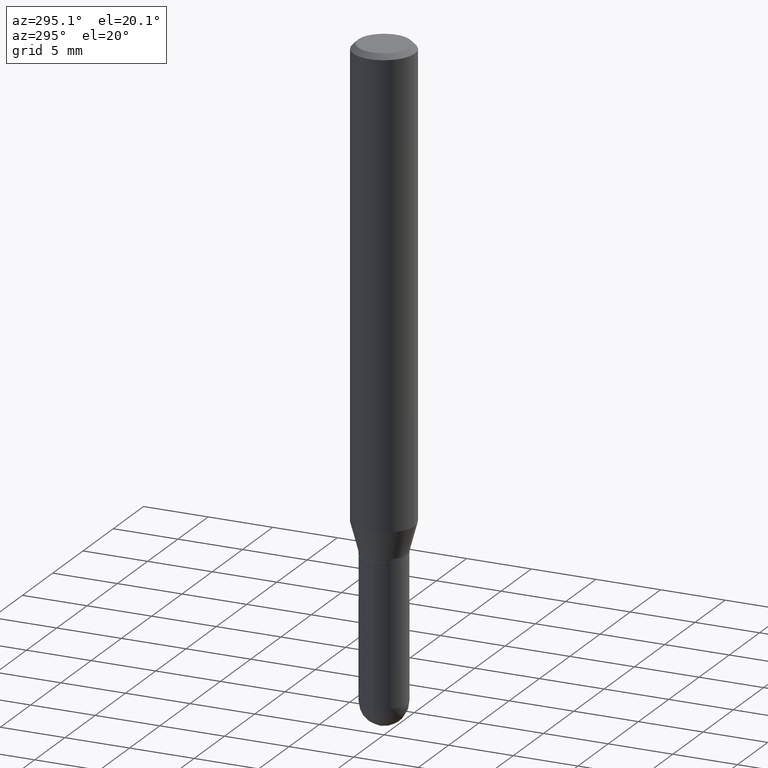
[diagram: clean part render]
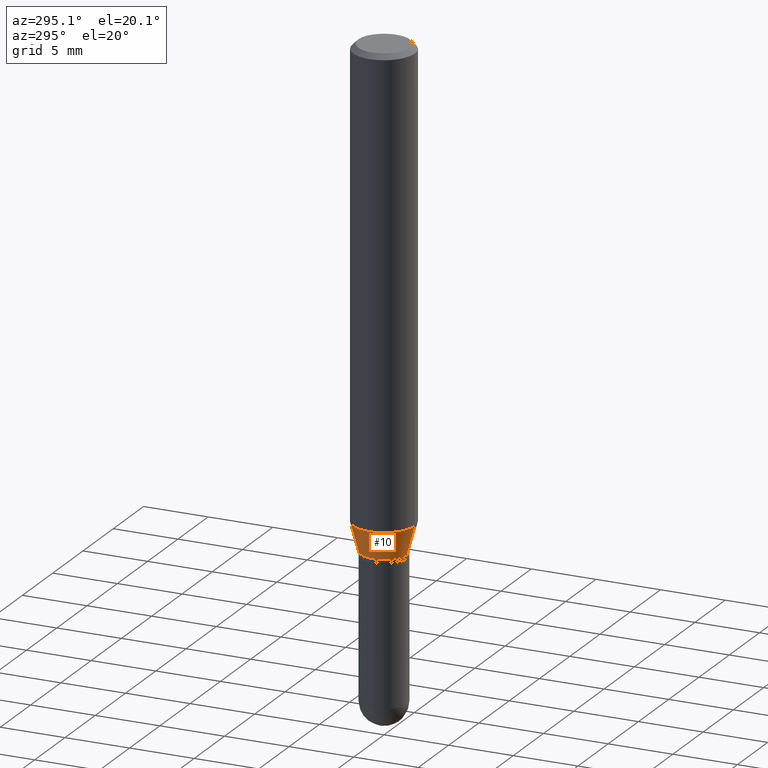
[diagram: same view with one face highlighted and labeled with its STEP entity id]
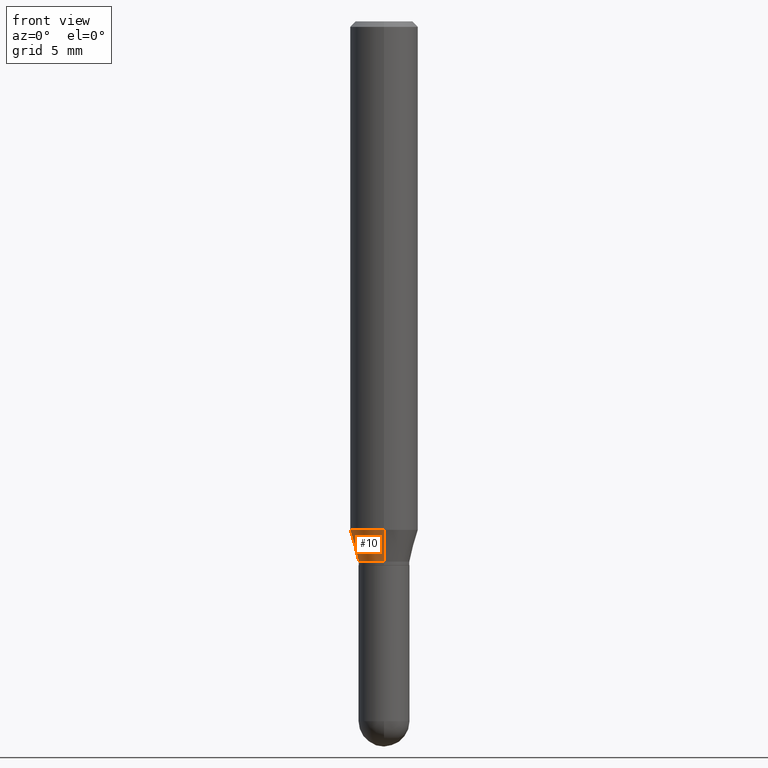
[diagram: same view with one face highlighted and labeled with its STEP entity id]
A machine part, auxiliary view. The second image highlights one B-rep face of the part: STEP entity #10.
A second angle (front view) of the same face is appended — the face is thin or edge-on in the first view.
In plain terms, the highlighted conical surface has half-angle 15 deg.
Its self-contained STEP definition (entity closure, byte-faithful):
#10 = ADVANCED_FACE ( 'NONE', ( #451 ), #197, .T. ) ;
#17 = VERTEX_POINT ( 'NONE', #65 ) ;
#60 = CARTESIAN_POINT ( 'NONE',  ( -6.546527510330530901E-16, -0.09375000000000488498, -1.402483408562508638 ) ) ;
#65 = CARTESIAN_POINT ( 'NONE',  ( 5.828226790072563992E-16, 0.07029999999999450577, -1.489999999999999991 ) ) ;
#83 = VERTEX_POINT ( 'NONE', #374 ) ;
#95 = ORIENTED_EDGE ( 'NONE', *, *, #470, .F. ) ;
#126 = AXIS2_PLACEMENT_3D ( 'NONE', #161, #471, #288 ) ;
#127 = EDGE_LOOP ( 'NONE', ( #95, #509, #324, #290 ) ) ;
#137 = VECTOR ( 'NONE', #386, 39.37007874015748143 ) ;
#161 = CARTESIAN_POINT ( 'NONE',  ( 3.643450107390976951E-29, -5.202734540458167266E-15, -1.489999999999999769 ) ) ;
#165 = VERTEX_POINT ( 'NONE', #327 ) ;
#197 = CONICAL_SURFACE ( 'NONE', #214, 0.07029999999999970994, 0.2617993877991510732 ) ;
#207 = EDGE_CURVE ( 'NONE', #17, #83, #219, .T. ) ;
#214 = AXIS2_PLACEMENT_3D ( 'NONE', #260, #287, #249 ) ;
#219 = CIRCLE ( 'NONE', #126, 0.07029999999999970994 ) ;
#229 = VERTEX_POINT ( 'NONE', #60 ) ;
#249 = DIRECTION ( 'NONE',  ( -6.982962677686265922E-15, -1.000000000000000000, 3.885985766236521163E-15 ) ) ;
#252 = EDGE_CURVE ( 'NONE', #165, #229, #337, .T. ) ;
#260 = CARTESIAN_POINT ( 'NONE',  ( 3.643450107390976951E-29, -5.202734540458167266E-15, -1.489999999999999769 ) ) ;
#265 = LINE ( 'NONE', #506, #312 ) ;
#274 = CARTESIAN_POINT ( 'NONE',  ( 4.995115432393847559E-16, 0.07029999999999450577, -1.489999999999999991 ) ) ;
#278 = AXIS2_PLACEMENT_3D ( 'NONE', #498, #418, #379 ) ;
#287 = DIRECTION ( 'NONE',  ( -2.445268528450320675E-29, 3.491768147958502797E-15, 1.000000000000000000 ) ) ;
#288 = DIRECTION ( 'NONE',  ( -6.982962677686265922E-15, -1.000000000000000000, 3.885985766236521163E-15 ) ) ;
#290 = ORIENTED_EDGE ( 'NONE', *, *, #252, .F. ) ;
#312 = VECTOR ( 'NONE', #321, 39.37007874015748854 ) ;
#321 = DIRECTION ( 'NONE',  ( -1.807323732225335661E-15, -0.2588190451025189631, 0.9659258262890687563 ) ) ;
#324 = ORIENTED_EDGE ( 'NONE', *, *, #462, .T. ) ;
#327 = CARTESIAN_POINT ( 'NONE',  ( 6.661338147751283383E-16, 0.09374999999999512890, -1.402483408562509304 ) ) ;
#337 = CIRCLE ( 'NONE', #278, 0.09375000000000001388 ) ;
#374 = CARTESIAN_POINT ( 'NONE',  ( -4.909022762413059973E-16, -0.07030000000000491411, -1.489999999999999325 ) ) ;
#379 = DIRECTION ( 'NONE',  ( -6.982962677686265922E-15, -1.000000000000000000, 2.913971193241880372E-15 ) ) ;
#386 = DIRECTION ( 'NONE',  ( 1.839019923739605837E-15, 0.2588190451025257355, 0.9659258262890669799 ) ) ;
#418 = DIRECTION ( 'NONE',  ( -2.445268528450320675E-29, 3.491768147958502797E-15, 1.000000000000000000 ) ) ;
#451 = FACE_OUTER_BOUND ( 'NONE', #127, .T. ) ;
#462 = EDGE_CURVE ( 'NONE', #83, #229, #265, .T. ) ;
#466 = LINE ( 'NONE', #274, #137 ) ;
#470 = EDGE_CURVE ( 'NONE', #17, #165, #466, .T. ) ;
#471 = DIRECTION ( 'NONE',  ( -2.445268528450320675E-29, 3.491768147958502797E-15, 1.000000000000000000 ) ) ;
#498 = CARTESIAN_POINT ( 'NONE',  ( 3.429448540631636149E-29, -4.897146894058840106E-15, -1.402483408562508860 ) ) ;
#506 = CARTESIAN_POINT ( 'NONE',  ( -4.909022762413059973E-16, -0.07030000000000491411, -1.489999999999999325 ) ) ;
#509 = ORIENTED_EDGE ( 'NONE', *, *, #207, .T. ) ;